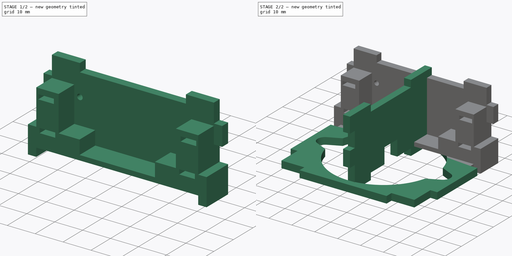
[diagram: build sequence overview — one tinted view per stage of 2, left to right]
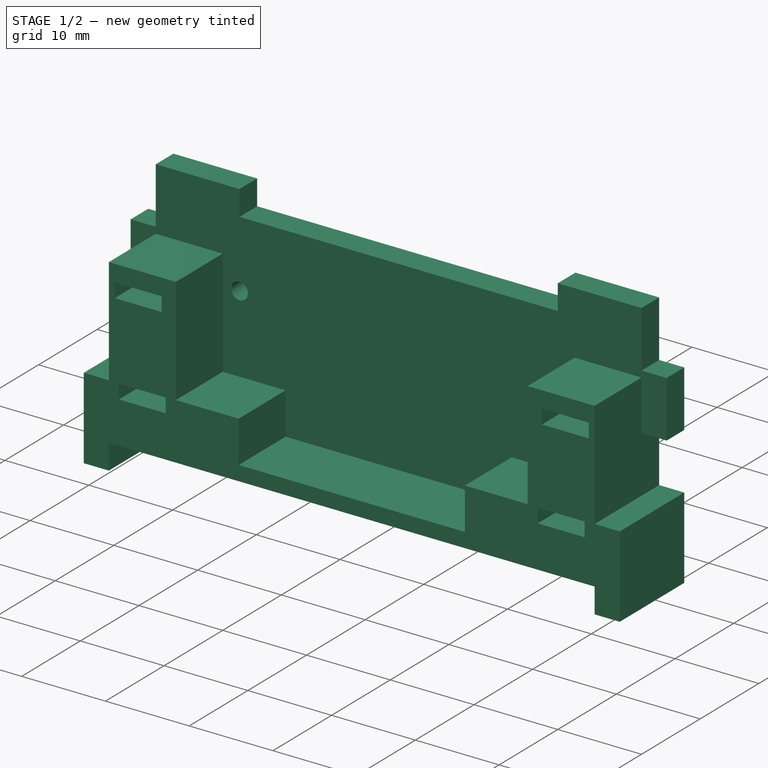
[diagram: stage 1 of 2 — iso view after this stage's code; geometry added in this stage tinted green]
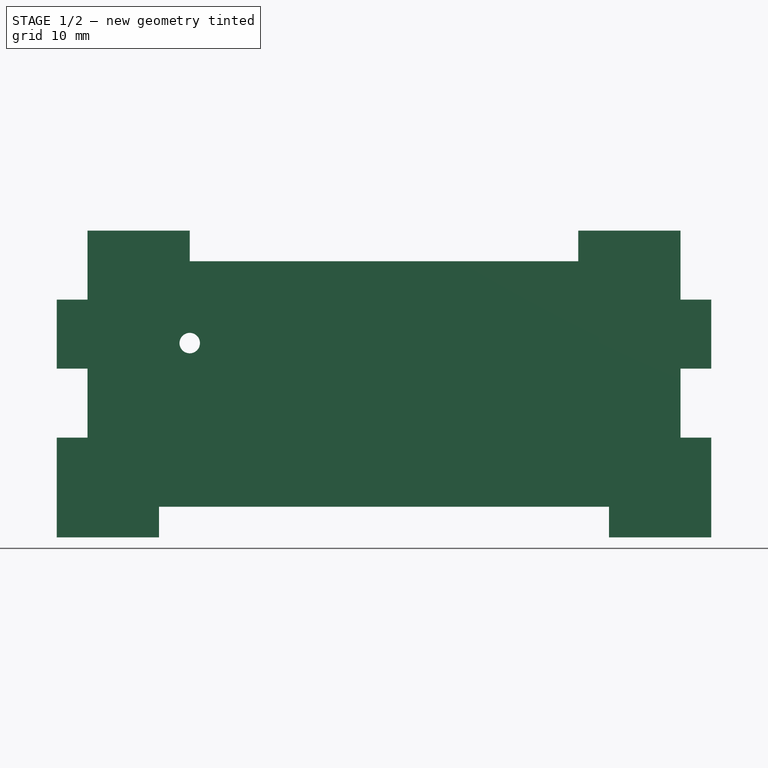
[diagram: stage 1 of 2 — front view after this stage's code; geometry added in this stage tinted green]
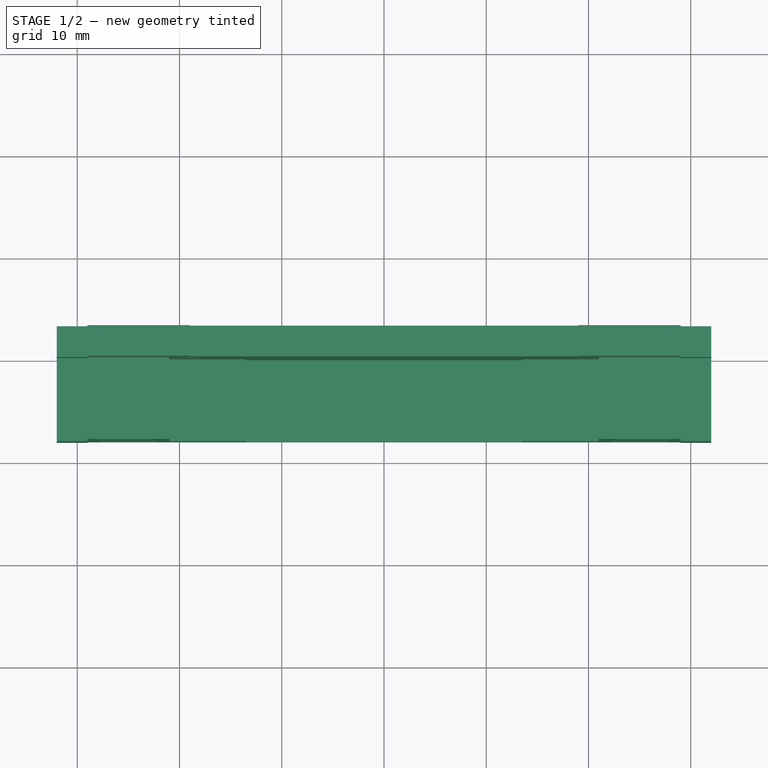
[diagram: stage 1 of 2 — top view after this stage's code; geometry added in this stage tinted green]
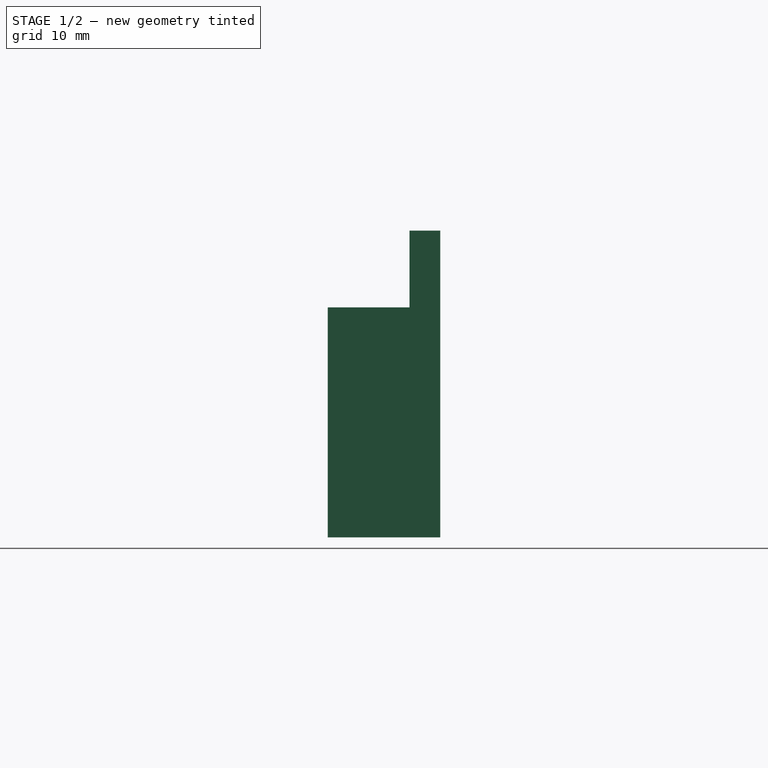
[diagram: stage 1 of 2 — right view after this stage's code; geometry added in this stage tinted green]
FCSTD DOCUMENT  (FreeCAD 0.19R24366 (Git))
Label: ri-speakertest
License: All rights reserved
LicenseURL: http://en.wikipedia.org/wiki/All_rights_reserved
objects: Sketcher::SketchObject×8, PartDesign::Pad×4, PartDesign::Body×4, Part::Part2DObjectPython×4
note: 24 computed .brp shape members not serialized (recipe doc carries the construction recipe); baked Part::Feature solids carry a one-line shape summary decoded from their .brp

FEATURE [Sketcher::SketchObject] Sketch
  FullyConstrained = true
  MapMode = 5
  Placement = pos=(0,0,0) rot=(1,0,0;1.5708rad)
  Support = -> [XZ_Plane]
  expr: Constraints[80] = .Constraints.base
  expr: Constraints[37] = sum(.Constraints.tooth; .Constraints.baseplate)
  sketch-geometry (30):
    g0: LineSegment StartX=29 StartY=30 StartZ=0 EndX=29 EndY=23.25 EndZ=0
    g1: LineSegment StartX=29 StartY=23.25 StartZ=0 EndX=32 EndY=23.25 EndZ=0
    g2: LineSegment StartX=32 StartY=23.25 StartZ=0 EndX=32 EndY=16.5 EndZ=0
    g3: LineSegment StartX=32 StartY=16.5 StartZ=0 EndX=29 EndY=16.5 EndZ=0
    g4: LineSegment StartX=29 StartY=16.5 StartZ=0 EndX=29 EndY=9.75 EndZ=0
    g5: LineSegment StartX=29 StartY=9.75 StartZ=0 EndX=32 EndY=9.75 EndZ=0
    g6: LineSegment StartX=32 StartY=9.75 StartZ=0 EndX=32 EndY=2.13111e-10 EndZ=0
    g7: LineSegment StartX=32 StartY=2.13111e-10 StartZ=0 EndX=22 EndY=2.13111e-10 EndZ=0
    g8: LineSegment StartX=22 StartY=2.13111e-10 StartZ=0 EndX=22 EndY=3 EndZ=0
    g9: LineSegment StartX=-22 StartY=3 StartZ=0 EndX=-22 EndY=-2.13753e-10 EndZ=0
    g10: LineSegment StartX=-22 StartY=-2.13753e-10 StartZ=0 EndX=-32 EndY=-2.13753e-10 EndZ=0
    g11: LineSegment StartX=-32 StartY=-2.13753e-10 StartZ=0 EndX=-32 EndY=9.75 EndZ=0
    g12: LineSegment StartX=-32 StartY=9.75 StartZ=0 EndX=-29 EndY=9.75 EndZ=0
    g13: LineSegment StartX=-29 StartY=9.75 StartZ=0 EndX=-29 EndY=16.5 EndZ=0
    g14: LineSegment StartX=-29 StartY=16.5 StartZ=0 EndX=-32 EndY=16.5 EndZ=0
    g15: LineSegment StartX=-32 StartY=16.5 StartZ=0 EndX=-32 EndY=23.25 EndZ=0
    g16: LineSegment StartX=-32 StartY=23.25 StartZ=0 EndX=-29 EndY=23.25 EndZ=0
    g17: LineSegment StartX=-29 StartY=30 StartZ=0 EndX=-29 EndY=23.25 EndZ=0
    g18: LineSegment StartX=-22 StartY=3 StartZ=0 EndX=-2.5 EndY=3 EndZ=0
    g19: LineSegment StartX=-2.5 StartY=3 StartZ=0 EndX=-2.5 EndY=4 EndZ=0
    g20: LineSegment StartX=-2.5 StartY=4 StartZ=0 EndX=2.5 EndY=4 EndZ=0
    g21: LineSegment StartX=2.5 StartY=4 StartZ=0 EndX=2.5 EndY=3 EndZ=0
    g22: LineSegment StartX=2.5 StartY=3 StartZ=0 EndX=22 EndY=3 EndZ=0
    g23: LineSegment StartX=-29 StartY=30 StartZ=0 EndX=-19 EndY=30 EndZ=0
    g24: LineSegment StartX=-19 StartY=30 StartZ=0 EndX=-19 EndY=27 EndZ=0
    g25: LineSegment StartX=-19 StartY=27 StartZ=0 EndX=19 EndY=27 EndZ=0
    g26: LineSegment StartX=19 StartY=27 StartZ=0 EndX=19 EndY=30 EndZ=0
    g27: LineSegment StartX=19 StartY=30 StartZ=0 EndX=29 EndY=30 EndZ=0
    g28: Circle CenterX=-19 CenterY=19 CenterZ=0 NormalX=0 NormalY=0 NormalZ=1 AngleXU=0 Radius=1
    g29: Circle CenterX=-19 CenterY=8 CenterZ=0 NormalX=0 NormalY=0 NormalZ=1 AngleXU=0 Radius=1
  constraints (89):
    c: Vertical(g0)
    c: Coincident(g0,g1)
    c: Horizontal(g1)
    c: Coincident(g1,g2)
    c: Vertical(g2)
    c: Coincident(g2,g3)
    c: Horizontal(g3)
    c: Coincident(g3,g4)
    c: Vertical(g4)
    c: Coincident(g4,g5)
    c: Horizontal(g5)
    c: Coincident(g5,g6)
    c: Vertical(g6)
    c: Coincident(g6,g7)
    c: Horizontal(g7)
    c: Coincident(g7,g8)
    c: Vertical(g8)
    c: Vertical(g9)
    c: Coincident(g9,g10)
    c: Horizontal(g10)
    c: Coincident(g10,g11)
    c: Vertical(g11)
    c: Coincident(g11,g12)
    c: Horizontal(g12)
    c: Coincident(g12,g13)
    c: Coincident(g13,g14)
    c: Horizontal(g14)
    c: Coincident(g14,g15)
    c: Vertical(g15)
    c: Coincident(g15,g16)
    c: Horizontal(g16)
    c: Coincident(g17,g16)
    c: Vertical(g17)
    c: DistanceX(g17,g0) = 58  'length'
    c: DistanceY(g17,g17) = 6.75  'tooth'
    c: DistanceX(g16,g16) = 3  'thickness'
    c: Vertical(g13)
    c: DistanceY(g11,g11) = 9.75
    c: DistanceY(g9,g9) = 3  'baseplate'
    c: Symmetric(g6,g10,g-1)
    c: DistanceX(g10,g10) = 10  'base'
    c: Equal(g7,g10)
    c: Equal(g16,g14)
    c: Equal(g14,g12)
    c: Equal(g12,g5)
    c: Equal(g5,g3)
    c: Equal(g3,g1)
    c: Equal(g11,g6)
    c: Equal(g17,g15)
    c: Equal(g15,g13)
    c: Equal(g13,g0)
    c: Equal(g0,g2)
    c: Equal(g2,g4)
    c: Coincident(g9,g18)
    c: Horizontal(g18)
    c: Coincident(g18,g19)
    c: Vertical(g19)
    c: Coincident(g19,g20)
    c: Horizontal(g20)
    c: Coincident(g20,g21)
    c: Vertical(g21)
    c: Coincident(g21,g22)
    c: Coincident(g22,g8)
    c: Horizontal(g22)
    c: DistanceY(g19,g19) = 1  'cable'
    c: Equal(g18,g22)
    c: Coincident(g17,g23)
    c: Horizontal(g23)
    c: Coincident(g23,g24)
    c: Vertical(g24)
    c: Coincident(g24,g25)
    c: Horizontal(g25)
    c: Coincident(g25,g26)
    c: Vertical(g26)
    c: Coincident(g26,g27)
    c: Coincident(g27,g0)
    c: Horizontal(g27)
    c: Equal(g23,g27)
    c: Equal(g24,g26)
    c: Equal(g16,g24)
    c: DistanceX(g23,g23) = 10
    c: DistanceX(g20,g20) = 5
    c: Equal(g21,g19)
    c: Equal(g28,g29)
    c: Diameter(g28) = 2
    c: Vertical(g28,g29)
    c: DistanceY(g9,g29) = 5
    c: DistanceY(g29,g28) = 11
    c: DistanceX(g12,g28) = 10
FEATURE [PartDesign::Pad] Pad
  Direction = (0,22.5,0)
  Length = 3
  Length2 = 100
  Placement = pos=(0,0,0) rot=(1,0,0;1.5708rad)
  Profile = -> Sketch
  Refine = true
  Type = 0
  UseCustomVector = true
FEATURE [PartDesign::Body] Body001  label="sidewall"
  Group = -> [Sketch001,Pad001]
  Origin = -> Origin001
  Tip = -> Pad001
FEATURE [Sketcher::SketchObject] Sketch002
  FullyConstrained = true
  MapMode = 5
  Placement = pos=(0,0,0) rot=(1,0,0;1.5708rad)
  Support = -> [XZ_Plane002]
  expr: Constraints[34] = sum(Sketch.Constraints.baseplate; Sketch.Constraints.tooth)
  expr: Constraints[38] = Sketch.Constraints.baseplate
  expr: Constraints[46] = Sketch.Constraints.tooth * 3 - 7.5mm
  expr: Constraints[82] = .Constraints.nutside
  expr: Constraints[41] = Sketch.Constraints.thickness
  expr: Constraints[42] = Sketch.Constraints.length
  expr: Constraints[96] = .Constraints.nutdistance
  sketch-geometry (40):
    g0: LineSegment StartX=-32 StartY=0 StartZ=0 EndX=-29 EndY=0 EndZ=0
    g1: LineSegment StartX=-29 StartY=0 StartZ=0 EndX=-29 EndY=3 EndZ=0
    g2: LineSegment StartX=-29 StartY=3 StartZ=0 EndX=29 EndY=3 EndZ=0
    g3: LineSegment StartX=29 StartY=3 StartZ=0 EndX=29 EndY=0 EndZ=0
    g4: LineSegment StartX=29 StartY=0 StartZ=0 EndX=32 EndY=0 EndZ=0
    g5: LineSegment StartX=32 StartY=0 StartZ=0 EndX=32 EndY=9.75 EndZ=0
    g6: LineSegment StartX=32 StartY=9.75 StartZ=0 EndX=29 EndY=9.75 EndZ=0
    g7: LineSegment StartX=29 StartY=9.75 StartZ=0 EndX=29 EndY=22.5 EndZ=0
    g8: LineSegment StartX=29 StartY=22.5 StartZ=0 EndX=21 EndY=22.5 EndZ=0
    g9: LineSegment StartX=21 StartY=22.5 StartZ=0 EndX=21 EndY=9.75 EndZ=0
    g10: LineSegment StartX=21 StartY=9.75 StartZ=0 EndX=13.5 EndY=9.75 EndZ=0
    g11: LineSegment StartX=-21 StartY=9.75 StartZ=0 EndX=-21 EndY=22.5 EndZ=0
    g12: LineSegment StartX=-21 StartY=22.5 StartZ=0 EndX=-29 EndY=22.5 EndZ=0
    g13: LineSegment StartX=-29 StartY=22.5 StartZ=0 EndX=-29 EndY=9.75 EndZ=0
    g14: LineSegment StartX=-29 StartY=9.75 StartZ=0 EndX=-32 EndY=9.75 EndZ=0
    g15: LineSegment StartX=-32 StartY=9.75 StartZ=0 EndX=-32 EndY=0 EndZ=0
    g16: LineSegment StartX=-27.8 StartY=9.7 StartZ=0 EndX=-22.2 EndY=9.7 EndZ=0
    g17: LineSegment StartX=-22.2 StartY=9.7 StartZ=0 EndX=-22.2 EndY=8 EndZ=0
    g18: LineSegment StartX=-22.2 StartY=8 StartZ=0 EndX=-27.8 EndY=8 EndZ=0
    g19: LineSegment StartX=-27.8 StartY=8 StartZ=0 EndX=-27.8 EndY=9.7 EndZ=0
    g20: LineSegment StartX=22.2 StartY=9.7 StartZ=0 EndX=27.8 EndY=9.7 EndZ=0
    g21: LineSegment StartX=27.8 StartY=9.7 StartZ=0 EndX=27.8 EndY=8 EndZ=0
    g22: LineSegment StartX=27.8 StartY=8 StartZ=0 EndX=22.2 EndY=8 EndZ=0
    g23: LineSegment StartX=22.2 StartY=8 StartZ=0 EndX=22.2 EndY=9.7 EndZ=0
    g24: LineSegment StartX=22.7 StartY=20.5 StartZ=0 EndX=28.3 EndY=20.5 EndZ=0
    g25: LineSegment StartX=28.3 StartY=20.5 StartZ=0 EndX=28.3 EndY=18.8 EndZ=0
    g26: LineSegment StartX=28.3 StartY=18.8 StartZ=0 EndX=22.7 EndY=18.8 EndZ=0
    g27: LineSegment StartX=22.7 StartY=18.8 StartZ=0 EndX=22.7 EndY=20.5 EndZ=0
    g28: GeomPoint X=25.5 Y=20.5 Z=0
    g29: LineSegment StartX=-28.3 StartY=20.5 StartZ=0 EndX=-22.7 EndY=20.5 EndZ=0
    g30: LineSegment StartX=-22.7 StartY=20.5 StartZ=0 EndX=-22.7 EndY=18.8 EndZ=0
    g31: LineSegment StartX=-22.7 StartY=18.8 StartZ=0 EndX=-28.3 EndY=18.8 EndZ=0
    g32: LineSegment StartX=-28.3 StartY=18.8 StartZ=0 EndX=-28.3 EndY=20.5 EndZ=0
    g33: GeomPoint X=-25.5 Y=20.5 Z=0
    g34: GeomPoint X=-25 Y=8 Z=0
    g35: GeomPoint X=25 Y=8 Z=0
    g36: LineSegment StartX=-13.5 StartY=9.75 StartZ=0 EndX=-13.5 EndY=4.75 EndZ=0
    g37: LineSegment StartX=-13.5 StartY=4.75 StartZ=0 EndX=13.5 EndY=4.75 EndZ=0
    g38: LineSegment StartX=13.5 StartY=4.75 StartZ=0 EndX=13.5 EndY=9.75 EndZ=0
    g39: LineSegment StartX=-13.5 StartY=9.75 StartZ=0 EndX=-21 EndY=9.75 EndZ=0
  constraints (110):
    c: PointOnObject(g0,g-1)
    c: PointOnObject(g0,g-1)
    c: Coincident(g0,g1)
    c: Vertical(g1)
    c: Coincident(g1,g2)
    c: Horizontal(g2)
    c: Coincident(g2,g3)
    c: Vertical(g3)
    c: Coincident(g3,g4)
    c: Horizontal(g4)
    c: Coincident(g4,g5)
    c: Vertical(g5)
    c: Coincident(g5,g6)
    c: Horizontal(g6)
    c: Coincident(g6,g7)
    c: Vertical(g7)
    c: Coincident(g7,g8)
    c: Horizontal(g8)
    c: Coincident(g8,g9)
    c: Vertical(g9)
    c: Coincident(g9,g10)
    c: Horizontal(g10)
    c: Coincident(g39,g11)
    c: Vertical(g11)
    c: Coincident(g11,g12)
    c: Horizontal(g12)
    c: Coincident(g12,g13)
    c: Vertical(g13)
    c: Coincident(g13,g14)
    c: Horizontal(g14)
    c: Coincident(g14,g15)
    c: Coincident(g15,g0)
    c: Vertical(g15)
    c: Symmetric(g3,g0,g-1)
    c: DistanceY(g5,g5) = 9.75
    c: Equal(g15,g5)
    c: Equal(g4,g0)
    c: DistanceX(g4,g4) = 3
    c: DistanceY(g3,g3) = 3
    c: Horizontal(g9,g6)
    c: Equal(g6,g14)
    c: DistanceX(g6,g6) = 3
    c: DistanceX(g13,g6) = 58
    c: Equal(g11,g9)
    c: Equal(g12,g8)
    c: DistanceX(g8,g8) = 8
    c: DistanceY(g7,g7) = 12.75
    c: Coincident(g16,g17)
    c: Coincident(g17,g18)
    c: Coincident(g18,g19)
    c: Coincident(g19,g16)
    c: Horizontal(g16)
    c: Horizontal(g18)
    c: Vertical(g17)
    c: Vertical(g19)
    c: Coincident(g20,g21)
    c: Coincident(g21,g22)
    c: Coincident(g22,g23)
    c: Coincident(g23,g20)
    c: Horizontal(g20)
    c: Horizontal(g22)
    c: Vertical(g21)
    c: Vertical(g23)
    c: Coincident(g24,g25)
    c: Coincident(g25,g26)
    c: Coincident(g26,g27)
    c: Coincident(g27,g24)
    c: Horizontal(g24)
    c: Horizontal(g26)
    c: Vertical(g25)
    c: Vertical(g27)
    c: Symmetric(g24,g24,g28)
    c: DistanceX(g28,g7) = 3.5  'nutside'
    c: Coincident(g29,g30)
    c: Coincident(g30,g31)
    c: Coincident(g31,g32)
    c: Coincident(g32,g29)
    c: Horizontal(g29)
    c: Horizontal(g31)
    c: Vertical(g30)
    c: Vertical(g32)
    c: Symmetric(g29,g29,g33)
    c: DistanceX(g12,g33) = 3.5
    c: Symmetric(g17,g18,g34)
    c: DistanceX(g1,g34) = 4
    c: Equal(g16,g20)
    c: Equal(g20,g26)
    c: Equal(g26,g31)
    c: Equal(g32,g27)
    c: Equal(g27,g23)
    c: Equal(g23,g19)
    c: DistanceX(g16,g16) = 5.6
    c: DistanceY(g19,g19) = 1.7
    c: Symmetric(g21,g22,g35)
    c: DistanceX(g35,g2) = 4
    c: DistanceY(g1,g18) = 5  'nutdistance'
    c: DistanceY(g2,g21) = 5
    c: DistanceY(g29,g12) = 2
    c: DistanceY(g24,g7) = 2
    c: Vertical(g36)
    c: Coincident(g36,g37)
    c: Horizontal(g37)
    c: Coincident(g37,g38)
    c: Vertical(g38)
    c: Coincident(g10,g38)
    c: Coincident(g39,g36)
    c: Tangent(g10,g39)
    c: DistanceY(g38,g38) = 5
    c: DistanceX(g37,g37) = 27
    c: Equal(g10,g39)
FEATURE [PartDesign::Pad] Pad002
  Direction = (0,-22.5,0)
  Length = 8
  Length2 = 100
  Placement = pos=(0,0,0) rot=(1,0,0;1.5708rad)
  Profile = -> Sketch002
  Refine = true
  Type = 0
  UseCustomVector = true
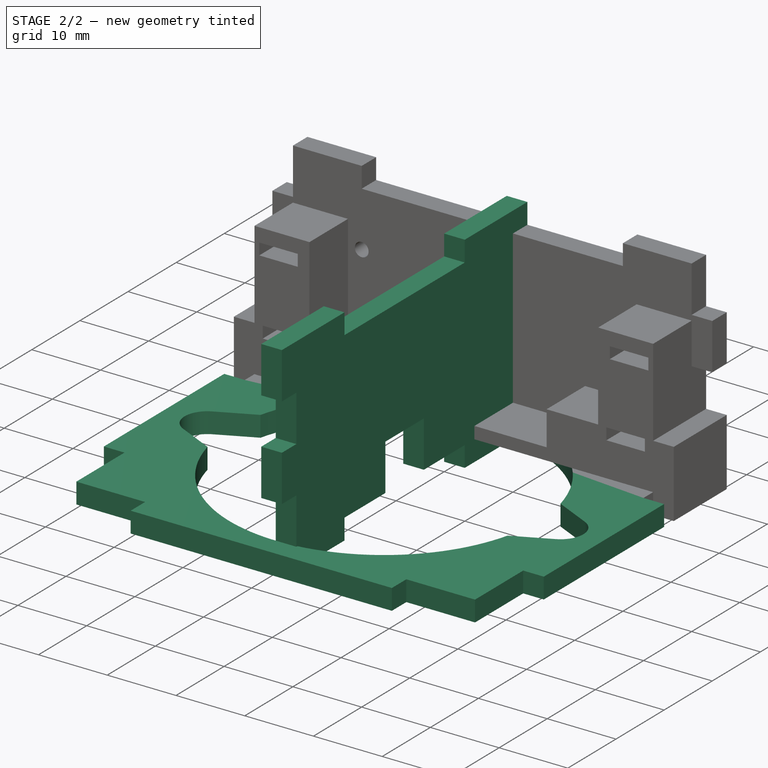
[diagram: stage 2 of 2 — iso view after this stage's code; geometry added in this stage tinted green]
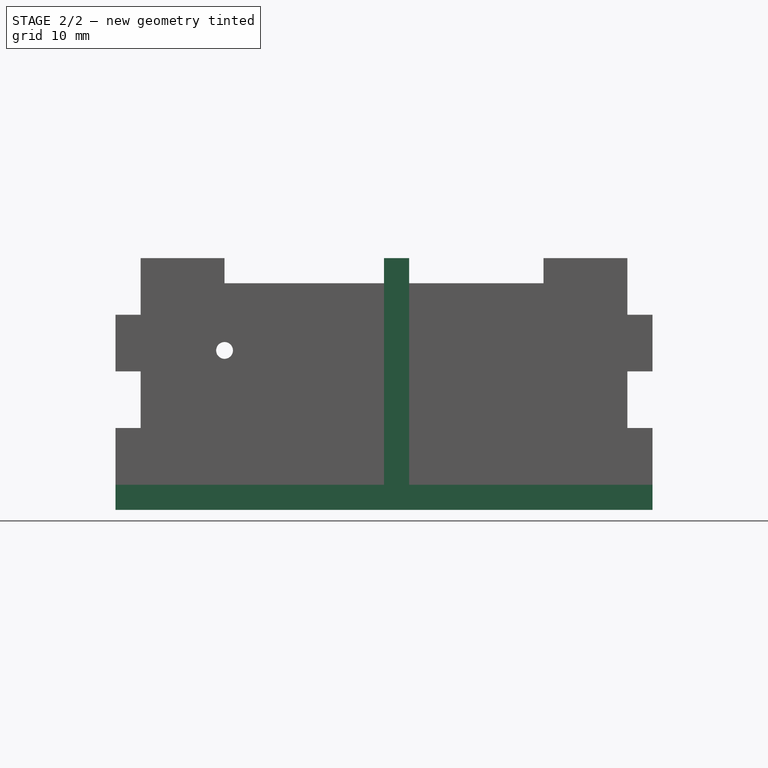
[diagram: stage 2 of 2 — front view after this stage's code; geometry added in this stage tinted green]
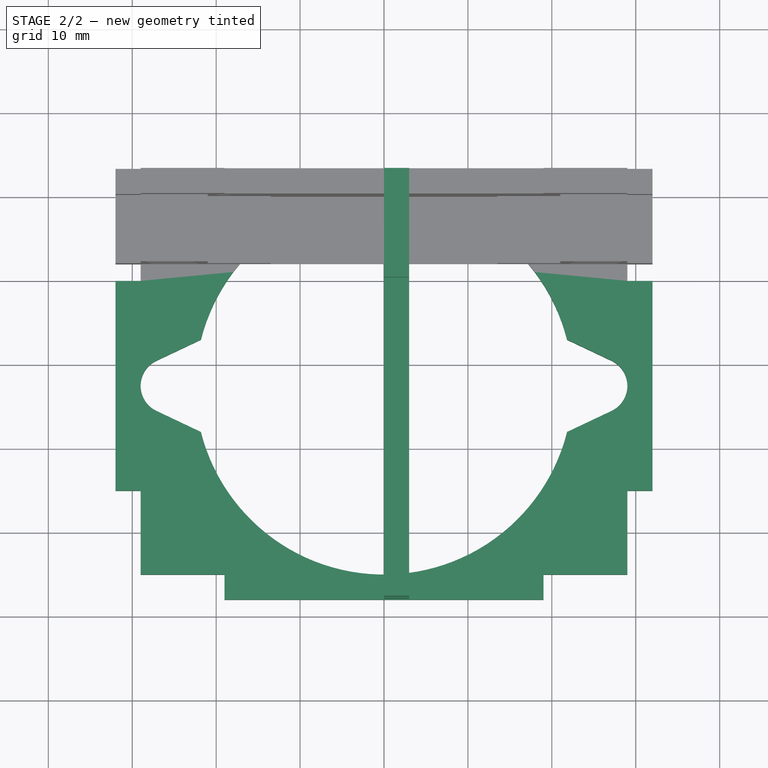
[diagram: stage 2 of 2 — top view after this stage's code; geometry added in this stage tinted green]
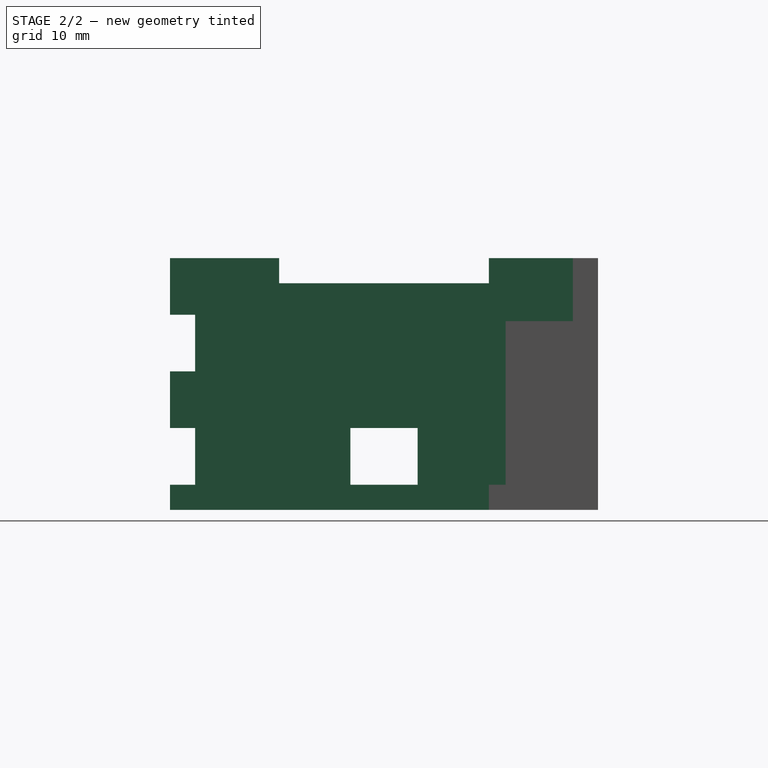
[diagram: stage 2 of 2 — right view after this stage's code; geometry added in this stage tinted green]
FEATURE [PartDesign::Body] Body  label="frontwall"
  Group = -> [Sketch,Pad]
  Origin = -> Origin
  Tip = -> Pad
FEATURE [Sketcher::SketchObject] Sketch001
  FullyConstrained = true
  MapMode = 5
  Placement = pos=(0,0,0) rot=(0.57735,0.57735,0.57735;2.0944rad)
  Support = -> [YZ_Plane001]
  expr: Constraints[83] = sum(Sketch.Constraints.thickness; Sketch.Constraints.base)
  expr: Constraints[60] = Sketch.Constraints.baseplate
  expr: Constraints[61] = Sketch.Constraints.tooth
  expr: Constraints[65] = Sketch.Constraints.base
  expr: Constraints[62] = Sketch.Constraints.thickness
  expr: Constraints[66] = sum(Sketch.Constraints.baseplate; Sketch.Constraints.tooth)
  expr: Constraints[68] = Sketch.Constraints.tooth
  sketch-geometry (29):
    g0: LineSegment StartX=-48 StartY=30 StartZ=0 EndX=-48 EndY=23.25 EndZ=0
    g1: LineSegment StartX=-48 StartY=23.25 StartZ=0 EndX=-45 EndY=23.25 EndZ=0
    g2: LineSegment StartX=-45 StartY=23.25 StartZ=0 EndX=-45 EndY=16.5 EndZ=0
    g3: LineSegment StartX=-45 StartY=16.5 StartZ=0 EndX=-48 EndY=16.5 EndZ=0
    g4: LineSegment StartX=-48 StartY=16.5 StartZ=0 EndX=-48 EndY=9.75 EndZ=0
    g5: LineSegment StartX=-48 StartY=9.75 StartZ=0 EndX=-45 EndY=9.75 EndZ=0
    g6: LineSegment StartX=-45 StartY=9.75 StartZ=0 EndX=-45 EndY=4.9667e-12 EndZ=0
    g7: LineSegment StartX=-45 StartY=4.9667e-12 StartZ=0 EndX=-35 EndY=4.9667e-12 EndZ=0
    g8: LineSegment StartX=-35 StartY=4.9667e-12 StartZ=0 EndX=-35 EndY=3 EndZ=0
    g9: LineSegment StartX=-35 StartY=3 StartZ=0 EndX=-26.5 EndY=3 EndZ=0
    g10: LineSegment StartX=-26.5 StartY=3 StartZ=0 EndX=-26.5 EndY=9.75 EndZ=0
    g11: LineSegment StartX=-26.5 StartY=9.75 StartZ=0 EndX=-18.5 EndY=9.75 EndZ=0
    g12: LineSegment StartX=-18.5 StartY=9.75 StartZ=0 EndX=-18.5 EndY=3 EndZ=0
    g13: LineSegment StartX=-18.5 StartY=3 StartZ=0 EndX=-10 EndY=3 EndZ=0
    g14: LineSegment StartX=-10 StartY=3 StartZ=0 EndX=-10 EndY=0 EndZ=0
    g15: LineSegment StartX=-10 StartY=0 StartZ=0 EndX=0 EndY=0 EndZ=0
    g16: LineSegment StartX=0 StartY=0 StartZ=0 EndX=0 EndY=9.75 EndZ=0
    g17: LineSegment StartX=0 StartY=9.75 StartZ=0 EndX=3 EndY=9.75 EndZ=0
    g18: LineSegment StartX=3 StartY=9.75 StartZ=0 EndX=3 EndY=16.5 EndZ=0
    g19: LineSegment StartX=3 StartY=16.5 StartZ=0 EndX=2.25766e-11 EndY=16.5 EndZ=0
    g20: LineSegment StartX=2.25766e-11 StartY=16.5 StartZ=0 EndX=2.25766e-11 EndY=23.25 EndZ=0
    g21: LineSegment StartX=2.25766e-11 StartY=23.25 StartZ=0 EndX=3 EndY=23.25 EndZ=0
    g22: LineSegment StartX=3 StartY=23.25 StartZ=0 EndX=3 EndY=30 EndZ=0
    g23: GeomPoint X=-22.5 Y=9.75 Z=0
    g24: LineSegment StartX=-48 StartY=30 StartZ=0 EndX=-35 EndY=30 EndZ=0
    g25: LineSegment StartX=-35 StartY=30 StartZ=0 EndX=-35 EndY=27 EndZ=0
    g26: LineSegment StartX=-35 StartY=27 StartZ=0 EndX=-10 EndY=27 EndZ=0
    g27: LineSegment StartX=-10 StartY=27 StartZ=0 EndX=-10 EndY=30 EndZ=0
    g28: LineSegment StartX=-10 StartY=30 StartZ=0 EndX=3 EndY=30 EndZ=0
  constraints (84):
    c: Vertical(g0)
    c: Coincident(g0,g1)
    c: Coincident(g1,g2)
    c: Vertical(g2)
    c: Coincident(g2,g3)
    c: Horizontal(g3)
    c: Coincident(g3,g4)
    c: Vertical(g4)
    c: Coincident(g4,g5)
    c: Coincident(g5,g6)
    c: Vertical(g6)
    c: Coincident(g6,g7)
    c: Coincident(g7,g8)
    c: Vertical(g8)
    c: Coincident(g8,g9)
    c: Horizontal(g9)
    c: Coincident(g9,g10)
    c: Vertical(g10)
    c: Coincident(g10,g11)
    c: Horizontal(g11)
    c: Coincident(g11,g12)
    c: Vertical(g12)
    c: Coincident(g12,g13)
    c: Horizontal(g13)
    c: Coincident(g13,g14)
    c: Vertical(g14)
    c: Coincident(g14,g15)
    c: Horizontal(g15)
    c: Coincident(g15,g16)
    c: Coincident(g16,g17)
    c: Horizontal(g17)
    c: Coincident(g17,g18)
    c: Vertical(g18)
    c: Coincident(g18,g19)
    c: Coincident(g19,g20)
    c: Coincident(g20,g21)
    c: Horizontal(g21)
    c: Coincident(g21,g22)
    c: Vertical(g22)
    c: Vertical(g20)
    c: Vertical(g16)
    c: Horizontal(g7)
    c: Horizontal(g5)
    c: Horizontal(g1)
    c: Equal(g21,g19)
    c: Equal(g19,g17)
    c: Equal(g17,g1)
    c: Equal(g1,g3)
    c: Equal(g3,g5)
    c: Equal(g22,g20)
    c: Equal(g20,g18)
    c: Equal(g18,g4)
    c: Equal(g4,g2)
    c: Equal(g2,g0)
    c: Horizontal(g19)
    c: Equal(g8,g14)
    c: Equal(g7,g15)
    c: Symmetric(g11,g10,g23)
    c: Equal(g13,g9)
    c: Coincident(g15,g-1)
    c: DistanceY(g8,g8) = 3
    c: DistanceY(g0,g0) = 6.75
    c: DistanceX(g1,g1) = 3
    c: DistanceX(g11,g11) = 8
    c: DistanceX(g6,g15) = 45  'width'
    c: DistanceX(g7,g7) = 10
    c: DistanceY(g6,g6) = 9.75
    c: Equal(g10,g12)
    c: DistanceY(g10,g10) = 6.75
    c: Coincident(g0,g24)
    c: Horizontal(g24)
    c: Coincident(g24,g25)
    c: Vertical(g25)
    c: Coincident(g25,g26)
    c: Horizontal(g26)
    c: Coincident(g26,g27)
    c: Vertical(g27)
    c: Coincident(g27,g28)
    c: Coincident(g28,g22)
    c: Horizontal(g28)
    c: Equal(g25,g27)
    c: Equal(g27,g1)
    c: Equal(g24,g28)
    c: DistanceX(g24,g24) = 13
FEATURE [PartDesign::Pad] Pad001
  Direction = (29,0,0)
  Length = 3
  Length2 = 100
  Placement = pos=(0,0,0) rot=(0.57735,0.57735,0.57735;2.0944rad)
  Profile = -> Sketch001
  Refine = true
  Type = 0
  UseCustomVector = true
FEATURE [PartDesign::Body] Body002  label="support"
  Group = -> [Sketch002,Pad002]
  Origin = -> Origin002
  Tip = -> Pad002
FEATURE [Sketcher::SketchObject] Sketch003
  FullyConstrained = true
  MapMode = 5
  Support = -> [XY_Plane003]
  expr: Constraints[61] = Sketch001.Constraints.width
  expr: Constraints[56] = Sketch.Constraints.length
  expr: Constraints[57] = Sketch001.Constraints.width
  expr: Constraints[55] = Sketch.Constraints.base
  expr: Constraints[46] = Sketch.Constraints.thickness
  sketch-geometry (30):
    g0: LineSegment StartX=-19 StartY=3 StartZ=0 EndX=19 EndY=3 EndZ=0
    g1: LineSegment StartX=19 StartY=3 StartZ=0 EndX=19 EndY=0 EndZ=0
    g2: LineSegment StartX=19 StartY=0 StartZ=0 EndX=29 EndY=0 EndZ=0
    g3: LineSegment StartX=29 StartY=0 StartZ=0 EndX=29 EndY=-10 EndZ=0
    g4: LineSegment StartX=29 StartY=-10 StartZ=0 EndX=32 EndY=-10 EndZ=0
    g5: LineSegment StartX=32 StartY=-10 StartZ=0 EndX=32 EndY=-35 EndZ=0
    g6: LineSegment StartX=32 StartY=-35 StartZ=0 EndX=29 EndY=-35 EndZ=0
    g7: LineSegment StartX=29 StartY=-35 StartZ=0 EndX=29 EndY=-45 EndZ=0
    g8: LineSegment StartX=29 StartY=-45 StartZ=0 EndX=19 EndY=-45 EndZ=0
    g9: LineSegment StartX=19 StartY=-45 StartZ=0 EndX=19 EndY=-48 EndZ=0
    g10: LineSegment StartX=19 StartY=-48 StartZ=0 EndX=-19 EndY=-48 EndZ=0
    g11: LineSegment StartX=-19 StartY=-48 StartZ=0 EndX=-19 EndY=-45 EndZ=0
    g12: LineSegment StartX=-19 StartY=-45 StartZ=0 EndX=-29 EndY=-45 EndZ=0
    g13: LineSegment StartX=-29 StartY=-45 StartZ=0 EndX=-29 EndY=-35 EndZ=0
    g14: LineSegment StartX=-29 StartY=-35 StartZ=0 EndX=-32 EndY=-35 EndZ=0
    g15: LineSegment StartX=-32 StartY=-35 StartZ=0 EndX=-32 EndY=-10 EndZ=0
    g16: LineSegment StartX=-32 StartY=-10 StartZ=0 EndX=-29 EndY=-10 EndZ=0
    g17: LineSegment StartX=-29 StartY=-10 StartZ=0 EndX=-29 EndY=0 EndZ=0
    g18: LineSegment StartX=-29 StartY=0 StartZ=0 EndX=-19 EndY=0 EndZ=0
    g19: LineSegment StartX=-19 StartY=0 StartZ=0 EndX=-19 EndY=3 EndZ=0
    g20: LineSegment StartX=29 StartY=-10 StartZ=0 EndX=29 EndY=-35 EndZ=0
    g21: ArcOfCircle CenterX=-8e-16 CenterY=-22.5 CenterZ=0 NormalX=0 NormalY=0 NormalZ=1 AngleXU=0 Radius=22.5 StartAngle=0.246947 EndAngle=2.89465
    g22: LineSegment StartX=21.8174 StartY=-17 StartZ=0 EndX=27.1007 EndY=-19.5 EndZ=0
    g23: LineSegment StartX=27.1007 StartY=-25.5 StartZ=0 EndX=21.8174 EndY=-28 EndZ=0
    g24: LineSegment StartX=-32 StartY=-22.5 StartZ=0 EndX=32 EndY=-22.5 EndZ=0
    g25: ArcOfCircle CenterX=25.6811 CenterY=-22.5 CenterZ=0 NormalX=0 NormalY=0 NormalZ=1 AngleXU=0 Radius=3.31892 StartAngle=5.15436 EndAngle=7.41201
    g26: LineSegment StartX=-21.8174 StartY=-17 StartZ=0 EndX=-27.1007 EndY=-19.5 EndZ=0
    g27: LineSegment StartX=-27.1007 StartY=-25.5 StartZ=0 EndX=-21.8174 EndY=-28 EndZ=0
    g28: ArcOfCircle CenterX=-25.6811 CenterY=-22.5 CenterZ=0 NormalX=0 NormalY=0 NormalZ=1 AngleXU=0 Radius=3.31892 StartAngle=2.01277 EndAngle=4.27041
    g29: ArcOfCircle CenterX=-8e-16 CenterY=-22.5 CenterZ=0 NormalX=0 NormalY=0 NormalZ=1 AngleXU=0 Radius=22.5 StartAngle=3.38854 EndAngle=6.03624
  constraints (86):
    c: Horizontal(g0)
    c: Coincident(g0,g1)
    c: PointOnObject(g1,g-1)
    c: Vertical(g1)
    c: Coincident(g1,g2)
    c: PointOnObject(g2,g-1)
    c: Coincident(g2,g3)
    c: Vertical(g3)
    c: Coincident(g3,g4)
    c: Horizontal(g4)
    c: Coincident(g4,g5)
    c: Vertical(g5)
    c: Coincident(g5,g6)
    c: Coincident(g6,g7)
    c: Vertical(g7)
    c: Coincident(g7,g8)
    c: Horizontal(g8)
    c: Coincident(g8,g9)
    c: Vertical(g9)
    c: Coincident(g9,g10)
    c: Horizontal(g10)
    c: Coincident(g10,g11)
    c: Vertical(g11)
    c: Coincident(g11,g12)
    c: Horizontal(g12)
    c: Coincident(g12,g13)
    c: Vertical(g13)
    c: Coincident(g13,g14)
    c: Horizontal(g14)
    c: Coincident(g14,g15)
    c: Vertical(g15)
    c: Coincident(g15,g16)
    c: Horizontal(g16)
    c: Coincident(g16,g17)
    c: Vertical(g17)
    c: Coincident(g17,g18)
    c: Horizontal(g18)
    c: Coincident(g18,g19)
    c: Coincident(g19,g0)
    c: Vertical(g19)
    c: Equal(g1,g4)
    c: Equal(g4,g6)
    c: Equal(g6,g9)
    c: Equal(g9,g11)
    c: Equal(g11,g14)
    c: Equal(g14,g16)
    c: DistanceY(g19,g19) = 3
    c: Horizontal(g6)
    c: Equal(g7,g8)
    c: Equal(g8,g3)
    c: Equal(g3,g2)
    c: Equal(g2,g18)
    c: Equal(g18,g17)
    c: Equal(g17,g13)
    c: Equal(g13,g12)
    c: DistanceY(g17,g17) = 10
    c: DistanceX(g17,g2) = 58
    c: DistanceY(g12,g17) = 45
    c: Symmetric(g2,g17,g-1)
    c: Coincident(g20,g3)
    c: Coincident(g20,g6)
    c: Diameter(g21) = 45
    c: Symmetric(g7,g17,g21)
    c: DistanceY(g23,g22) = 11
    c: PointOnObject(g24,g5)
    c: Horizontal(g24)
    c: Symmetric(g22,g23,g24)
    c: Tangent(g22,g25) = 1.5708
    c: Tangent(g23,g25) = 1.5708
    c: Tangent(g25,g20)
    c: PointOnObject(g25,g24)
    c: DistanceY(g23,g22) = 6
    c: Coincident(g21,g22)
    c: Coincident(g29,g23)
    c: Symmetric(g27,g26,g24)
    c: Equal(g27,g23)
    c: Tangent(g26,g28) = -1.5708
    c: Tangent(g27,g28) = -1.5708
    c: Equal(g28,g25)
    c: Horizontal(g26,g21)
    c: PointOnObject(g28,g24)
    c: Equal(g21,g29)
    c: Coincident(g21,g26)
    c: Coincident(g21,g29)
    c: PointOnObject(g29,g27)
    c: PointOnObject(g24,g15)
FEATURE [PartDesign::Pad] Pad003
  Direction = (1,1,1)
  Length = 3
  Length2 = 100
  Profile = -> Sketch003
  Refine = true
  Type = 0
FEATURE [PartDesign::Body] Body003  label="cover"
  Group = -> [Sketch003,Pad003]
  Origin = -> Origin003
  Tip = -> Pad003
FEATURE [Part::Part2DObjectPython] Shape2DView002  # Draft 2D object (typed FeaturePython)
  Base = -> Pad003
  FaceNumbers = [29]
  FuseArch = false
  HiddenLines = false
  InPlace = true
  Projection = (0,0,1)
  ProjectionMode = 0
  SegmentLength = 0.05
  Tessellation = false
  VisibleOnly = false
FEATURE [Sketcher::SketchObject] Sketch006  label="cover001"
  FullyConstrained = false
  sketch-geometry (28):
    g0: LineSegment StartX=-19 StartY=3 StartZ=0 EndX=19 EndY=3 EndZ=0
    g1: LineSegment StartX=19 StartY=3 StartZ=0 EndX=19 EndY=0 EndZ=0
    g2: LineSegment StartX=19 StartY=0 StartZ=0 EndX=29 EndY=0 EndZ=0
    g3: LineSegment StartX=29 StartY=0 StartZ=0 EndX=29 EndY=-10 EndZ=0
    g4: LineSegment StartX=29 StartY=-10 StartZ=0 EndX=32 EndY=-10 EndZ=0
    g5: LineSegment StartX=32 StartY=-10 StartZ=0 EndX=32 EndY=-35 EndZ=0
    g6: LineSegment StartX=32 StartY=-35 StartZ=0 EndX=29 EndY=-35 EndZ=0
    g7: LineSegment StartX=29 StartY=-35 StartZ=0 EndX=29 EndY=-45 EndZ=0
    g8: LineSegment StartX=29 StartY=-45 StartZ=0 EndX=19 EndY=-45 EndZ=0
    g9: LineSegment StartX=19 StartY=-45 StartZ=0 EndX=19 EndY=-48 EndZ=0
    g10: LineSegment StartX=19 StartY=-48 StartZ=0 EndX=-19 EndY=-48 EndZ=0
    g11: LineSegment StartX=-19 StartY=-48 StartZ=0 EndX=-19 EndY=-45 EndZ=0
    g12: LineSegment StartX=-19 StartY=-45 StartZ=0 EndX=-29 EndY=-45 EndZ=0
    g13: LineSegment StartX=-29 StartY=-45 StartZ=0 EndX=-29 EndY=-35 EndZ=0
    g14: LineSegment StartX=-29 StartY=-35 StartZ=0 EndX=-32 EndY=-35 EndZ=0
    g15: LineSegment StartX=-32 StartY=-35 StartZ=0 EndX=-32 EndY=-10 EndZ=0
    g16: LineSegment StartX=-32 StartY=-10 StartZ=0 EndX=-29 EndY=-10 EndZ=0
    g17: LineSegment StartX=-29 StartY=-10 StartZ=0 EndX=-29 EndY=0 EndZ=0
    g18: LineSegment StartX=-29 StartY=0 StartZ=0 EndX=-19 EndY=0 EndZ=0
    g19: LineSegment StartX=-19 StartY=0 StartZ=0 EndX=-19 EndY=3 EndZ=0
    g20: ArcOfCircle CenterX=25.6811 CenterY=-22.5 CenterZ=0 NormalX=0 NormalY=0 NormalZ=1 AngleXU=0 Radius=3.31892 StartAngle=5.15436 EndAngle=7.41201
    g21: LineSegment StartX=21.8174 StartY=-17 StartZ=0 EndX=27.1007 EndY=-19.5 EndZ=0
    g22: ArcOfCircle CenterX=-8e-16 CenterY=-22.5 CenterZ=0 NormalX=0 NormalY=0 NormalZ=1 AngleXU=0 Radius=22.5 StartAngle=0.246947 EndAngle=2.89465
    g23: LineSegment StartX=-21.8174 StartY=-17 StartZ=0 EndX=-27.1007 EndY=-19.5 EndZ=0
    g24: ArcOfCircle CenterX=-25.6811 CenterY=-22.5 CenterZ=0 NormalX=0 NormalY=0 NormalZ=1 AngleXU=0 Radius=3.31892 StartAngle=2.01277 EndAngle=4.27041
    g25: LineSegment StartX=-27.1007 StartY=-25.5 StartZ=0 EndX=-21.8174 EndY=-28 EndZ=0
    g26: ArcOfCircle CenterX=-8e-16 CenterY=-22.5 CenterZ=0 NormalX=0 NormalY=0 NormalZ=1 AngleXU=0 Radius=22.5 StartAngle=3.38854 EndAngle=6.03624
    g27: LineSegment StartX=27.1007 StartY=-25.5 StartZ=0 EndX=21.8174 EndY=-28 EndZ=0
FEATURE [Part::Part2DObjectPython] Shape2DView  # Draft 2D object (typed FeaturePython)
  Base = -> Pad001
  FaceNumbers = [28]
  FuseArch = false
  HiddenLines = false
  InPlace = true
  Projection = (-1,0,0)
  ProjectionMode = 0
  SegmentLength = 0.05
  Tessellation = false
  VisibleOnly = false
FEATURE [Sketcher::SketchObject] Sketch009  label="side"
  FullyConstrained = false
  sketch-geometry (28):
    g0: LineSegment StartX=-30 StartY=48 StartZ=0 EndX=-23.25 EndY=48 EndZ=0
    g1: LineSegment StartX=-23.25 StartY=48 StartZ=0 EndX=-23.25 EndY=45 EndZ=0
    g2: LineSegment StartX=-23.25 StartY=45 StartZ=0 EndX=-16.5 EndY=45 EndZ=0
    g3: LineSegment StartX=-16.5 StartY=45 StartZ=0 EndX=-16.5 EndY=48 EndZ=0
    g4: LineSegment StartX=-16.5 StartY=48 StartZ=0 EndX=-9.75 EndY=48 EndZ=0
    g5: LineSegment StartX=-9.75 StartY=48 StartZ=0 EndX=-9.75 EndY=45 EndZ=0
    g6: LineSegment StartX=-9.75 StartY=45 StartZ=0 EndX=-4.9933e-12 EndY=45 EndZ=0
    g7: LineSegment StartX=-4.9917e-12 StartY=45 StartZ=0 EndX=-4.9861e-12 EndY=35 EndZ=0
    g8: LineSegment StartX=-4.9861e-12 StartY=35 StartZ=0 EndX=-3 EndY=35 EndZ=0
    g9: LineSegment StartX=-3 StartY=35 StartZ=0 EndX=-3 EndY=26.5 EndZ=0
    g10: LineSegment StartX=-3 StartY=26.5 StartZ=0 EndX=-9.75 EndY=26.5 EndZ=0
    g11: LineSegment StartX=-9.75 StartY=26.5 StartZ=0 EndX=-9.75 EndY=18.5 EndZ=0
    g12: LineSegment StartX=-9.75 StartY=18.5 StartZ=0 EndX=-3 EndY=18.5 EndZ=0
    g13: LineSegment StartX=-3 StartY=18.5 StartZ=0 EndX=-3 EndY=10 EndZ=0
    g14: LineSegment StartX=-3 StartY=10 StartZ=0 EndX=-6.7e-15 EndY=10 EndZ=0
    g15: LineSegment StartX=-5.6e-15 StartY=10 StartZ=0 EndX=0 EndY=1.8e-15 EndZ=0
    g16: LineSegment StartX=0 StartY=0 StartZ=0 EndX=-9.75 EndY=-3.2e-15 EndZ=0
    g17: LineSegment StartX=-9.75 StartY=-3.2e-15 StartZ=0 EndX=-9.75 EndY=-3 EndZ=0
    g18: LineSegment StartX=-9.75 StartY=-3 StartZ=0 EndX=-16.5 EndY=-3 EndZ=0
    g19: LineSegment StartX=-16.5 StartY=-3 StartZ=0 EndX=-16.5 EndY=-2.25824e-11 EndZ=0
    g20: LineSegment StartX=-16.5 StartY=-2.25821e-11 StartZ=0 EndX=-23.25 EndY=-2.25844e-11 EndZ=0
    g21: LineSegment StartX=-23.25 StartY=-2.25844e-11 StartZ=0 EndX=-23.25 EndY=-3 EndZ=0
    g22: LineSegment StartX=-23.25 StartY=-3 StartZ=0 EndX=-30 EndY=-3 EndZ=0
    g23: LineSegment StartX=-30 StartY=10 StartZ=0 EndX=-30 EndY=-3 EndZ=0
    g24: LineSegment StartX=-27 StartY=10 StartZ=0 EndX=-30 EndY=10 EndZ=0
    g25: LineSegment StartX=-27 StartY=35 StartZ=0 EndX=-27 EndY=10 EndZ=0
    g26: LineSegment StartX=-30 StartY=35 StartZ=0 EndX=-27 EndY=35 EndZ=0
    g27: LineSegment StartX=-30 StartY=48 StartZ=0 EndX=-30 EndY=35 EndZ=0
FEATURE [Part::Part2DObjectPython] Shape2DView005  # Draft 2D object (typed FeaturePython)
  Base = -> Pad002
  FaceNumbers = [37]
  FuseArch = false
  HiddenLines = false
  InPlace = true
  Projection = (0,-1,0)
  ProjectionMode = 0
  SegmentLength = 0.05
  Tessellation = false
  VisibleOnly = false
FEATURE [Sketcher::SketchObject] Sketch010  label="support001"
  FullyConstrained = false
  sketch-geometry (36):
    g0: LineSegment StartX=-9.75 StartY=-13.5 StartZ=0 EndX=-9.75 EndY=-21 EndZ=0
    g1: LineSegment StartX=-9.75 StartY=-21 StartZ=0 EndX=-22.5 EndY=-21 EndZ=0
    g2: LineSegment StartX=-22.5 StartY=-21 StartZ=0 EndX=-22.5 EndY=-29 EndZ=0
    g3: LineSegment StartX=-22.5 StartY=-29 StartZ=0 EndX=-9.75 EndY=-29 EndZ=0
    g4: LineSegment StartX=-9.75 StartY=-29 StartZ=0 EndX=-9.75 EndY=-32 EndZ=0
    g5: LineSegment StartX=-9.75 StartY=-32 StartZ=0 EndX=0 EndY=-32 EndZ=0
    g6: LineSegment StartX=0 StartY=-32 StartZ=0 EndX=0 EndY=-29 EndZ=0
    g7: LineSegment StartX=0 StartY=-29 StartZ=0 EndX=-3 EndY=-29 EndZ=0
    g8: LineSegment StartX=-3 StartY=-29 StartZ=0 EndX=-3 EndY=29 EndZ=0
    g9: LineSegment StartX=-3 StartY=29 StartZ=0 EndX=0 EndY=29 EndZ=0
    g10: LineSegment StartX=0 StartY=29 StartZ=0 EndX=0 EndY=32 EndZ=0
    g11: LineSegment StartX=0 StartY=32 StartZ=0 EndX=-9.75 EndY=32 EndZ=0
    g12: LineSegment StartX=-9.75 StartY=32 StartZ=0 EndX=-9.75 EndY=29 EndZ=0
    g13: LineSegment StartX=-9.75 StartY=29 StartZ=0 EndX=-22.5 EndY=29 EndZ=0
    g14: LineSegment StartX=-22.5 StartY=29 StartZ=0 EndX=-22.5 EndY=21 EndZ=0
    g15: LineSegment StartX=-22.5 StartY=21 StartZ=0 EndX=-9.75 EndY=21 EndZ=0
    g16: LineSegment StartX=-9.75 StartY=21 StartZ=0 EndX=-9.75 EndY=13.5 EndZ=0
    g17: LineSegment StartX=-4.75 StartY=13.5 StartZ=0 EndX=-9.75 EndY=13.5 EndZ=0
    g18: LineSegment StartX=-4.75 StartY=-13.5 StartZ=0 EndX=-4.75 EndY=13.5 EndZ=0
    g19: LineSegment StartX=-9.75 StartY=-13.5 StartZ=0 EndX=-4.75 EndY=-13.5 EndZ=0
    g20: LineSegment StartX=-20.5 StartY=-28.3 StartZ=0 EndX=-20.5 EndY=-22.7 EndZ=0
    g21: LineSegment StartX=-20.5 StartY=-22.7 StartZ=0 EndX=-18.8 EndY=-22.7 EndZ=0
    g22: LineSegment StartX=-18.8 StartY=-22.7 StartZ=0 EndX=-18.8 EndY=-28.3 EndZ=0
    g23: LineSegment StartX=-18.8 StartY=-28.3 StartZ=0 EndX=-20.5 EndY=-28.3 EndZ=0
    g24: LineSegment StartX=-20.5 StartY=22.7 StartZ=0 EndX=-20.5 EndY=28.3 EndZ=0
    g25: LineSegment StartX=-20.5 StartY=28.3 StartZ=0 EndX=-18.8 EndY=28.3 EndZ=0
    g26: LineSegment StartX=-18.8 StartY=28.3 StartZ=0 EndX=-18.8 EndY=22.7 EndZ=0
    g27: LineSegment StartX=-18.8 StartY=22.7 StartZ=0 EndX=-20.5 EndY=22.7 EndZ=0
    g28: LineSegment StartX=-9.7 StartY=22.2 StartZ=0 EndX=-9.7 EndY=27.8 EndZ=0
    g29: LineSegment StartX=-9.7 StartY=27.8 StartZ=0 EndX=-8 EndY=27.8 EndZ=0
    g30: LineSegment StartX=-8 StartY=27.8 StartZ=0 EndX=-8 EndY=22.2 EndZ=0
    g31: LineSegment StartX=-8 StartY=22.2 StartZ=0 EndX=-9.7 EndY=22.2 EndZ=0
    g32: LineSegment StartX=-9.7 StartY=-27.8 StartZ=0 EndX=-9.7 EndY=-22.2 EndZ=0
    g33: LineSegment StartX=-9.7 StartY=-22.2 StartZ=0 EndX=-8 EndY=-22.2 EndZ=0
    g34: LineSegment StartX=-8 StartY=-22.2 StartZ=0 EndX=-8 EndY=-27.8 EndZ=0
    g35: LineSegment StartX=-8 StartY=-27.8 StartZ=0 EndX=-9.7 EndY=-27.8 EndZ=0
FEATURE [Part::Part2DObjectPython] Shape2DView006  # Draft 2D object (typed FeaturePython)
  Base = -> Pad
  FaceNumbers = [30]
  FuseArch = false
  HiddenLines = false
  InPlace = true
  Projection = (0,-1,0)
  ProjectionMode = 0
  SegmentLength = 0.05
  Tessellation = false
  VisibleOnly = false
FEATURE [Sketcher::SketchObject] Sketch011  label="front"
  FullyConstrained = false
  sketch-geometry (30):
    g0: LineSegment StartX=-30 StartY=-29 StartZ=0 EndX=-30 EndY=-19 EndZ=0
    g1: LineSegment StartX=-30 StartY=-19 StartZ=0 EndX=-27 EndY=-19 EndZ=0
    g2: LineSegment StartX=-27 StartY=-19 StartZ=0 EndX=-27 EndY=19 EndZ=0
    g3: LineSegment StartX=-27 StartY=19 StartZ=0 EndX=-30 EndY=19 EndZ=0
    g4: LineSegment StartX=-30 StartY=19 StartZ=0 EndX=-30 EndY=29 EndZ=0
    g5: LineSegment StartX=-30 StartY=29 StartZ=0 EndX=-23.25 EndY=29 EndZ=0
    g6: LineSegment StartX=-23.25 StartY=29 StartZ=0 EndX=-23.25 EndY=32 EndZ=0
    g7: LineSegment StartX=-23.25 StartY=32 StartZ=0 EndX=-16.5 EndY=32 EndZ=0
    g8: LineSegment StartX=-16.5 StartY=32 StartZ=0 EndX=-16.5 EndY=29 EndZ=0
    g9: LineSegment StartX=-16.5 StartY=29 StartZ=0 EndX=-9.75 EndY=29 EndZ=0
    g10: LineSegment StartX=-9.75 StartY=29 StartZ=0 EndX=-9.75 EndY=32 EndZ=0
    g11: LineSegment StartX=-9.75 StartY=32 StartZ=0 EndX=-2.13111e-10 EndY=32 EndZ=0
    g12: LineSegment StartX=-2.13111e-10 StartY=32 StartZ=0 EndX=-2.13111e-10 EndY=22 EndZ=0
    g13: LineSegment StartX=-2.13111e-10 StartY=22 StartZ=0 EndX=-3 EndY=22 EndZ=0
    g14: LineSegment StartX=-3 StartY=2.5 StartZ=0 EndX=-3 EndY=22 EndZ=0
    g15: LineSegment StartX=-4 StartY=2.5 StartZ=0 EndX=-3 EndY=2.5 EndZ=0
    g16: LineSegment StartX=-4 StartY=-2.5 StartZ=0 EndX=-4 EndY=2.5 EndZ=0
    g17: LineSegment StartX=-3 StartY=-2.5 StartZ=0 EndX=-4 EndY=-2.5 EndZ=0
    g18: LineSegment StartX=-3 StartY=-22 StartZ=0 EndX=-3 EndY=-2.5 EndZ=0
    g19: LineSegment StartX=-3 StartY=-22 StartZ=0 EndX=2.13753e-10 EndY=-22 EndZ=0
    g20: LineSegment StartX=2.13753e-10 StartY=-22 StartZ=0 EndX=2.13753e-10 EndY=-32 EndZ=0
    g21: LineSegment StartX=2.13753e-10 StartY=-32 StartZ=0 EndX=-9.75 EndY=-32 EndZ=0
    g22: LineSegment StartX=-9.75 StartY=-32 StartZ=0 EndX=-9.75 EndY=-29 EndZ=0
    g23: LineSegment StartX=-9.75 StartY=-29 StartZ=0 EndX=-16.5 EndY=-29 EndZ=0
    g24: LineSegment StartX=-16.5 StartY=-29 StartZ=0 EndX=-16.5 EndY=-32 EndZ=0
    g25: LineSegment StartX=-16.5 StartY=-32 StartZ=0 EndX=-23.25 EndY=-32 EndZ=0
    g26: LineSegment StartX=-23.25 StartY=-32 StartZ=0 EndX=-23.25 EndY=-29 EndZ=0
    g27: LineSegment StartX=-30 StartY=-29 StartZ=0 EndX=-23.25 EndY=-29 EndZ=0
    g28: Circle CenterX=-8 CenterY=-19 CenterZ=0 NormalX=0 NormalY=0 NormalZ=1 AngleXU=1.5708 Radius=1
    g29: Circle CenterX=-19 CenterY=-19 CenterZ=0 NormalX=0 NormalY=0 NormalZ=1 AngleXU=1.5708 Radius=1
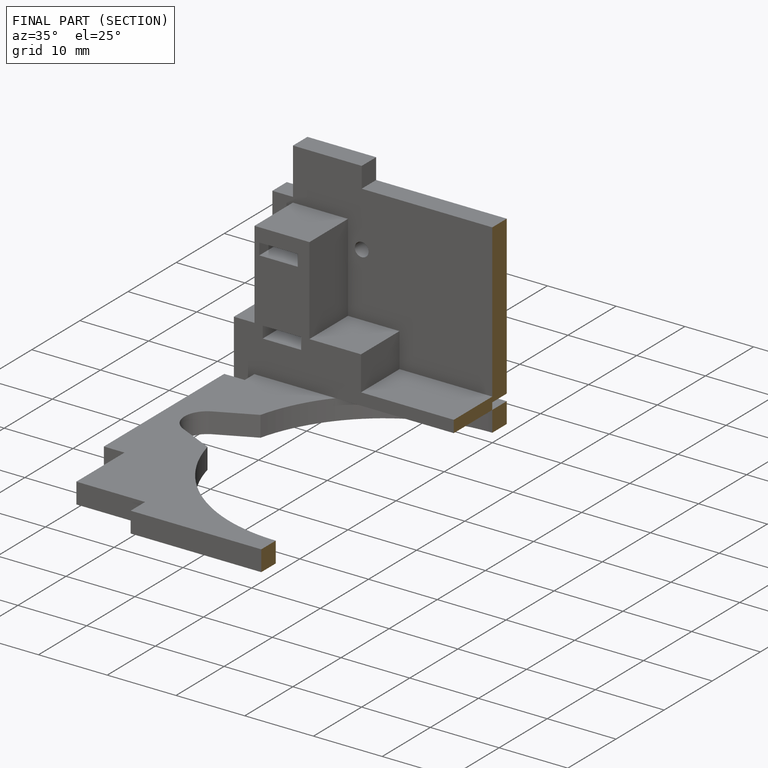
[diagram: finished part — half-section view (interior)]
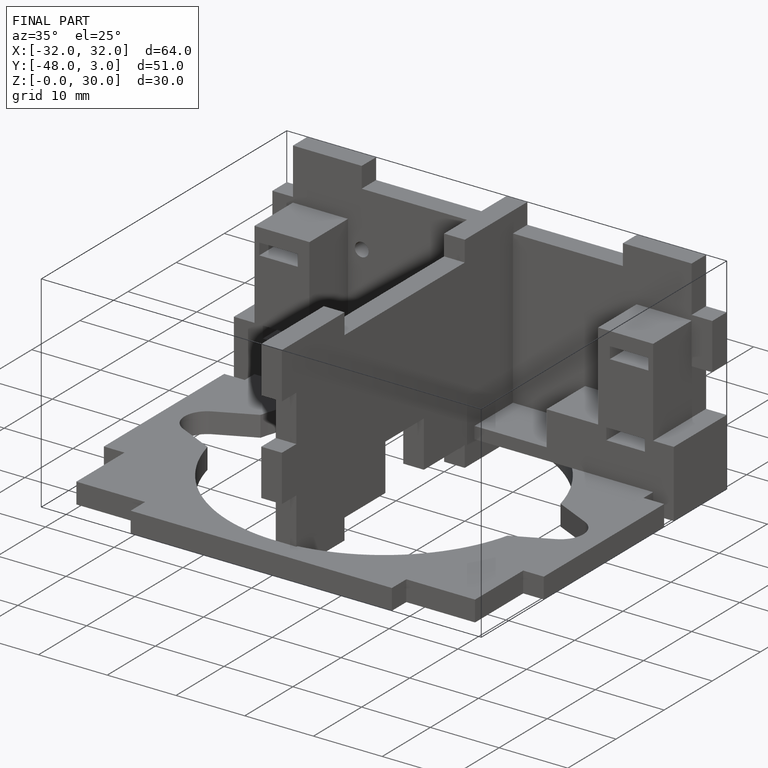
[diagram: finished part — iso view with bounding-box wireframe]
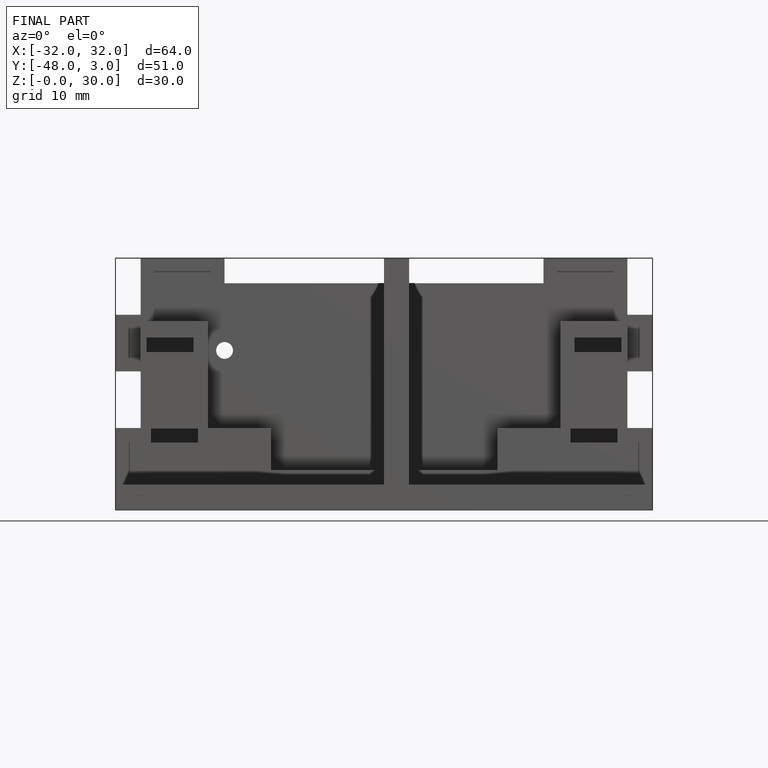
[diagram: finished part — front view with bounding-box wireframe]
